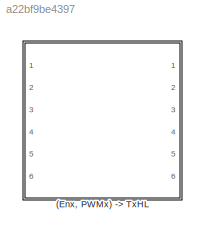
MODEL slx_a22bf9be4397
KIND library
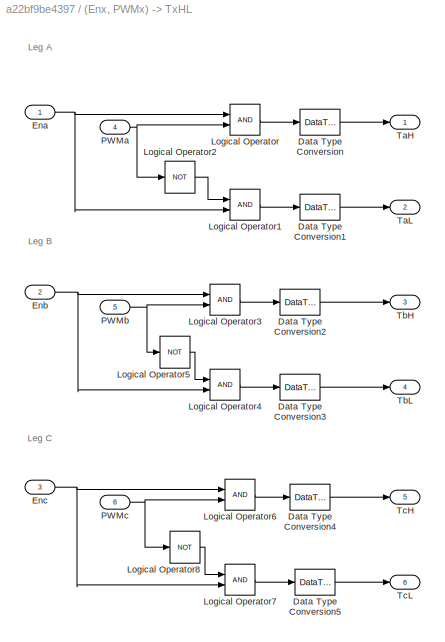
BLOCK [SubSystem] (Enx, PWMx) -> TxHL
  Ports = [6, 6]
  RequestExecContextInheritance = off
BLOCK [DataTypeConversion] (Enx, PWMx) -> TxHL/Data Type Conversion
  OutDataTypeStr = double
  RndMeth = Floor
  SaturateOnIntegerOverflow = off
BLOCK [DataTypeConversion] (Enx, PWMx) -> TxHL/Data Type Conversion1
  OutDataTypeStr = double
  RndMeth = Floor
  SaturateOnIntegerOverflow = off
BLOCK [DataTypeConversion] (Enx, PWMx) -> TxHL/Data Type Conversion2
  OutDataTypeStr = double
  RndMeth = Floor
  SaturateOnIntegerOverflow = off
BLOCK [DataTypeConversion] (Enx, PWMx) -> TxHL/Data Type Conversion3
  OutDataTypeStr = double
  RndMeth = Floor
  SaturateOnIntegerOverflow = off
BLOCK [DataTypeConversion] (Enx, PWMx) -> TxHL/Data Type Conversion4
  OutDataTypeStr = double
  RndMeth = Floor
  SaturateOnIntegerOverflow = off
BLOCK [DataTypeConversion] (Enx, PWMx) -> TxHL/Data Type Conversion5
  OutDataTypeStr = double
  RndMeth = Floor
  SaturateOnIntegerOverflow = off
BLOCK [Inport] (Enx, PWMx) -> TxHL/Ena
  IconDisplay = Port number
BLOCK [Inport] (Enx, PWMx) -> TxHL/Enb
  IconDisplay = Port number
  Port = 2
BLOCK [Inport] (Enx, PWMx) -> TxHL/Enc
  IconDisplay = Port number
  Port = 3
BLOCK [Logic] (Enx, PWMx) -> TxHL/Logical Operator
  AllPortsSameDT = off
  OutDataTypeStr = boolean
  Ports = [2, 1]
BLOCK [Logic] (Enx, PWMx) -> TxHL/Logical Operator1
  AllPortsSameDT = off
  OutDataTypeStr = boolean
  Ports = [2, 1]
BLOCK [Logic] (Enx, PWMx) -> TxHL/Logical Operator2
  AllPortsSameDT = off
  Operator = NOT
  OutDataTypeStr = boolean
  Ports = [1, 1]
BLOCK [Logic] (Enx, PWMx) -> TxHL/Logical Operator3
  AllPortsSameDT = off
  OutDataTypeStr = boolean
  Ports = [2, 1]
BLOCK [Logic] (Enx, PWMx) -> TxHL/Logical Operator4
  AllPortsSameDT = off
  OutDataTypeStr = boolean
  Ports = [2, 1]
BLOCK [Logic] (Enx, PWMx) -> TxHL/Logical Operator5
  AllPortsSameDT = off
  Operator = NOT
  OutDataTypeStr = boolean
  Ports = [1, 1]
BLOCK [Logic] (Enx, PWMx) -> TxHL/Logical Operator6
  AllPortsSameDT = off
  OutDataTypeStr = boolean
  Ports = [2, 1]
BLOCK [Logic] (Enx, PWMx) -> TxHL/Logical Operator7
  AllPortsSameDT = off
  OutDataTypeStr = boolean
  Ports = [2, 1]
BLOCK [Logic] (Enx, PWMx) -> TxHL/Logical Operator8
  AllPortsSameDT = off
  Operator = NOT
  OutDataTypeStr = boolean
  Ports = [1, 1]
BLOCK [Inport] (Enx, PWMx) -> TxHL/PWMa
  IconDisplay = Port number
  Port = 4
BLOCK [Inport] (Enx, PWMx) -> TxHL/PWMb
  IconDisplay = Port number
  Port = 5
BLOCK [Inport] (Enx, PWMx) -> TxHL/PWMc
  IconDisplay = Port number
  Port = 6
BLOCK [Outport] (Enx, PWMx) -> TxHL/TaH
  IconDisplay = Port number
BLOCK [Outport] (Enx, PWMx) -> TxHL/TaL
  IconDisplay = Port number
  Port = 2
BLOCK [Outport] (Enx, PWMx) -> TxHL/TbH
  IconDisplay = Port number
  Port = 3
BLOCK [Outport] (Enx, PWMx) -> TxHL/TbL
  IconDisplay = Port number
  Port = 4
BLOCK [Outport] (Enx, PWMx) -> TxHL/TcH
  IconDisplay = Port number
  Port = 5
BLOCK [Outport] (Enx, PWMx) -> TxHL/TcL
  IconDisplay = Port number
  Port = 6
ANNOTATION (Enx, PWMx) -> TxHL: Leg A
ANNOTATION (Enx, PWMx) -> TxHL: Leg B
ANNOTATION (Enx, PWMx) -> TxHL: Leg C
LINE (Enx, PWMx) -> TxHL/Data Type Conversion1:1 -> (Enx, PWMx) -> TxHL/TaL:1
LINE (Enx, PWMx) -> TxHL/Data Type Conversion2:1 -> (Enx, PWMx) -> TxHL/TbH:1
LINE (Enx, PWMx) -> TxHL/Data Type Conversion3:1 -> (Enx, PWMx) -> TxHL/TbL:1
LINE (Enx, PWMx) -> TxHL/Data Type Conversion4:1 -> (Enx, PWMx) -> TxHL/TcH:1
LINE (Enx, PWMx) -> TxHL/Data Type Conversion5:1 -> (Enx, PWMx) -> TxHL/TcL:1
LINE (Enx, PWMx) -> TxHL/Data Type Conversion:1 -> (Enx, PWMx) -> TxHL/TaH:1
NET (Enx, PWMx) -> TxHL/Ena:1 -> (Enx, PWMx) -> TxHL/Logical Operator1:2, (Enx, PWMx) -> TxHL/Logical Operator:1
NET (Enx, PWMx) -> TxHL/Enb:1 -> (Enx, PWMx) -> TxHL/Logical Operator3:1, (Enx, PWMx) -> TxHL/Logical Operator4:2
NET (Enx, PWMx) -> TxHL/Enc:1 -> (Enx, PWMx) -> TxHL/Logical Operator6:1, (Enx, PWMx) -> TxHL/Logical Operator7:2
LINE (Enx, PWMx) -> TxHL/Logical Operator1:1 -> (Enx, PWMx) -> TxHL/Data Type Conversion1:1
LINE (Enx, PWMx) -> TxHL/Logical Operator2:1 -> (Enx, PWMx) -> TxHL/Logical Operator1:1
LINE (Enx, PWMx) -> TxHL/Logical Operator3:1 -> (Enx, PWMx) -> TxHL/Data Type Conversion2:1
LINE (Enx, PWMx) -> TxHL/Logical Operator4:1 -> (Enx, PWMx) -> TxHL/Data Type Conversion3:1
LINE (Enx, PWMx) -> TxHL/Logical Operator5:1 -> (Enx, PWMx) -> TxHL/Logical Operator4:1
LINE (Enx, PWMx) -> TxHL/Logical Operator6:1 -> (Enx, PWMx) -> TxHL/Data Type Conversion4:1
LINE (Enx, PWMx) -> TxHL/Logical Operator7:1 -> (Enx, PWMx) -> TxHL/Data Type Conversion5:1
LINE (Enx, PWMx) -> TxHL/Logical Operator8:1 -> (Enx, PWMx) -> TxHL/Logical Operator7:1
LINE (Enx, PWMx) -> TxHL/Logical Operator:1 -> (Enx, PWMx) -> TxHL/Data Type Conversion:1
NET (Enx, PWMx) -> TxHL/PWMa:1 -> (Enx, PWMx) -> TxHL/Logical Operator2:1, (Enx, PWMx) -> TxHL/Logical Operator:2
NET (Enx, PWMx) -> TxHL/PWMb:1 -> (Enx, PWMx) -> TxHL/Logical Operator3:2, (Enx, PWMx) -> TxHL/Logical Operator5:1
NET (Enx, PWMx) -> TxHL/PWMc:1 -> (Enx, PWMx) -> TxHL/Logical Operator6:2, (Enx, PWMx) -> TxHL/Logical Operator8:1
note: NET lines group one-source signal fan-out (src -> all destinations, sorted); 1:1 wires keep LINE
